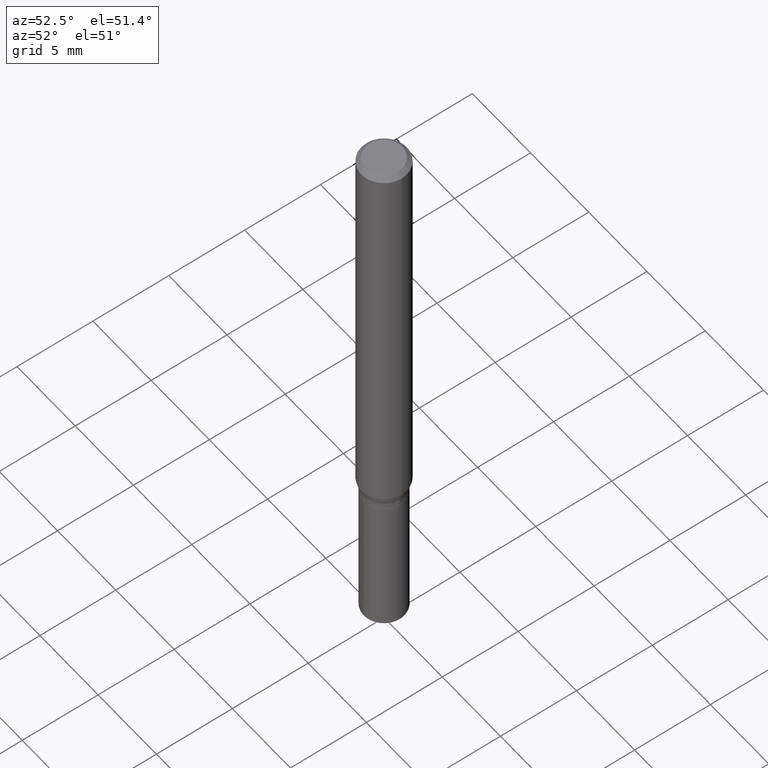
[diagram: clean part render]
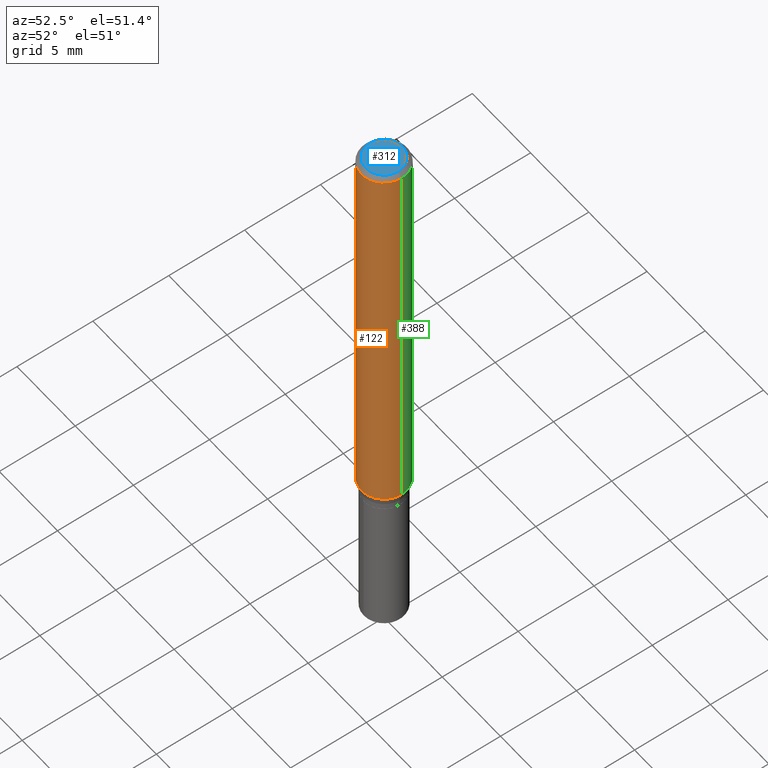
[diagram: same view with three faces highlighted in distinct colors, each labeled with its STEP entity id]
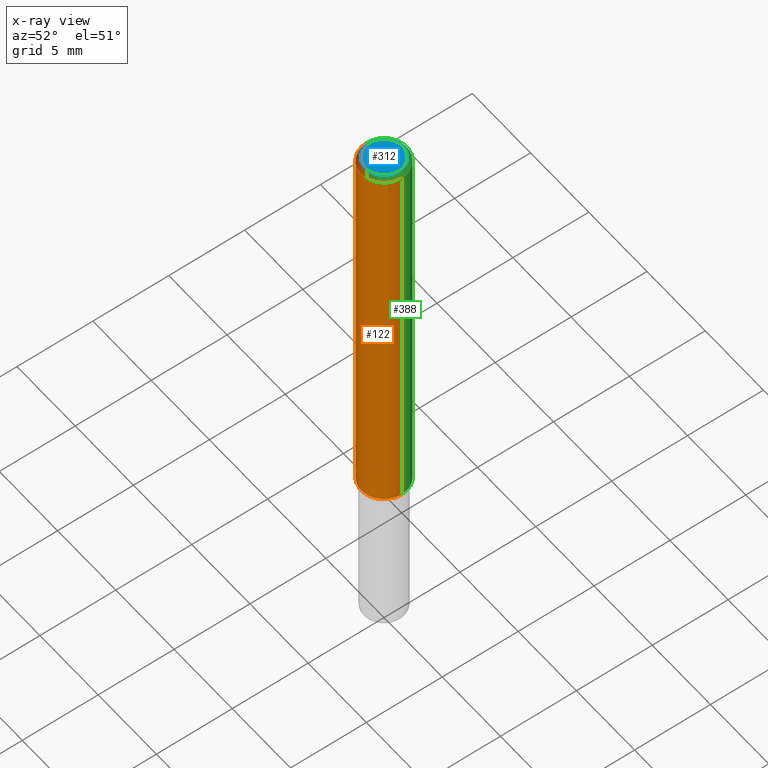
[diagram: x-ray of the same camera — body ghosted, the three highlighted faces saturated]
A machine part, auxiliary view with three faces highlighted in distinct colors.
The next image is the same camera in x-ray (body ghosted, the three faces saturated) — at least one of them is partly hidden behind the body in this view.
Their STEP definitions:

[orange] entity #122 — the highlighted cylindrical surface (edge-blend (fillet) strip) has radius 1.4999 mm, axis along (-0, 0, 1).
#8 = CARTESIAN_POINT ( 'NONE',  ( 2.578604211317355052E-29, -3.681563412833531563E-15, -1.054441669750801669 ) ) ;
#18 = ORIENTED_EDGE ( 'NONE', *, *, #93, .F. ) ;
#33 = CARTESIAN_POINT ( 'NONE',  ( -0.05905000000000006771, 4.195754854663396409E-16, -2.904631170795525045E-30 ) ) ;
#63 = CARTESIAN_POINT ( 'NONE',  ( 0.000000000000000000, 0.000000000000000000, 0.000000000000000000 ) ) ;
#69 = CARTESIAN_POINT ( 'NONE',  ( 2.888098660104664204E-31, -4.123439461173780263E-17, -0.01181000000000007218 ) ) ;
#89 = CARTESIAN_POINT ( 'NONE',  ( 0.05904999999999999832, -4.535783407291118600E-16, -0.01181000000000007218 ) ) ;
#93 = EDGE_CURVE ( 'NONE', #155, #124, #450, .T. ) ;
#95 = CARTESIAN_POINT ( 'NONE',  ( 0.05905000000000013016, -4.093907358950906483E-15, -1.054441669750801669 ) ) ;
#104 = DIRECTION ( 'NONE',  ( 1.000000000000000000, -6.982962677686266711E-15, 0.000000000000000000 ) ) ;
#122 = ADVANCED_FACE ( 'NONE', ( #174 ), #335, .T. ) ;
#124 = VERTEX_POINT ( 'NONE', #444 ) ;
#127 = DIRECTION ( 'NONE',  ( 1.000000000000000000, -6.982962677686266711E-15, 4.876176775795936353E-29 ) ) ;
#129 = VERTEX_POINT ( 'NONE', #95 ) ;
#138 = VERTEX_POINT ( 'NONE', #89 ) ;
#146 = DIRECTION ( 'NONE',  ( -2.445468806185136597E-29, 3.491481338843145583E-15, 1.000000000000000000 ) ) ;
#152 = VECTOR ( 'NONE', #376, 39.37007874015748143 ) ;
#155 = VERTEX_POINT ( 'NONE', #168 ) ;
#168 = CARTESIAN_POINT ( 'NONE',  ( -0.05905000000000013016, -3.261987927367191281E-15, -1.054441669750801669 ) ) ;
#173 = VECTOR ( 'NONE', #285, 39.37007874015748143 ) ;
#174 = FACE_OUTER_BOUND ( 'NONE', #375, .T. ) ;
#214 = DIRECTION ( 'NONE',  ( -2.445468806185136597E-29, 3.491481338843145583E-15, 1.000000000000000000 ) ) ;
#218 = CARTESIAN_POINT ( 'NONE',  ( 0.05905000000000006771, -4.123439461173745257E-16, 2.879382386107503723E-30 ) ) ;
#236 = ORIENTED_EDGE ( 'NONE', *, *, #319, .T. ) ;
#263 = DIRECTION ( 'NONE',  ( -2.445468806185136597E-29, 3.491481338843145583E-15, 1.000000000000000000 ) ) ;
#285 = DIRECTION ( 'NONE',  ( -2.445468806185136877E-29, 3.491481338843145188E-15, 1.000000000000000000 ) ) ;
#286 = EDGE_CURVE ( 'NONE', #124, #138, #381, .T. ) ;
#319 = EDGE_CURVE ( 'NONE', #129, #138, #427, .T. ) ;
#334 = AXIS2_PLACEMENT_3D ( 'NONE', #69, #146, #104 ) ;
#335 = CYLINDRICAL_SURFACE ( 'NONE', #463, 0.05905000000000006771 ) ;
#351 = CIRCLE ( 'NONE', #367, 0.05905000000000013016 ) ;
#367 = AXIS2_PLACEMENT_3D ( 'NONE', #8, #263, #389 ) ;
#368 = ORIENTED_EDGE ( 'NONE', *, *, #286, .F. ) ;
#375 = EDGE_LOOP ( 'NONE', ( #18, #467, #236, #368 ) ) ;
#376 = DIRECTION ( 'NONE',  ( -2.445468806185136877E-29, 3.491481338843145188E-15, 1.000000000000000000 ) ) ;
#381 = CIRCLE ( 'NONE', #334, 0.05904999999999999832 ) ;
#389 = DIRECTION ( 'NONE',  ( 1.000000000000000000, -6.982962677686265133E-15, 0.000000000000000000 ) ) ;
#427 = LINE ( 'NONE', #218, #152 ) ;
#444 = CARTESIAN_POINT ( 'NONE',  ( -0.05904999999999999832, -1.441823418256294167E-15, -0.01181000000000007218 ) ) ;
#450 = LINE ( 'NONE', #33, #173 ) ;
#463 = AXIS2_PLACEMENT_3D ( 'NONE', #63, #214, #127 ) ;
#465 = EDGE_CURVE ( 'NONE', #155, #129, #351, .T. ) ;
#467 = ORIENTED_EDGE ( 'NONE', *, *, #465, .T. ) ;

[blue] entity #312 — the highlighted planar face has unit normal (0, -0, -1).
#6 = CARTESIAN_POINT ( 'NONE',  ( 4.132873053354867254E-48, -5.900647395337818946E-34, -1.690012582823346072E-19 ) ) ;
#23 = CARTESIAN_POINT ( 'NONE',  ( 0.04724000000000000421, -3.852183633974369345E-16, -3.380025165621689721E-19 ) ) ;
#45 = ORIENTED_EDGE ( 'NONE', *, *, #150, .T. ) ;
#74 = CARTESIAN_POINT ( 'NONE',  ( -0.04724000000000000421, 3.504923541997677355E-16, -3.380025165670481712E-19 ) ) ;
#87 = EDGE_LOOP ( 'NONE', ( #45, #156 ) ) ;
#99 = VERTEX_POINT ( 'NONE', #23 ) ;
#100 = FACE_OUTER_BOUND ( 'NONE', #87, .T. ) ;
#110 = CIRCLE ( 'NONE', #459, 0.04724000000000000421 ) ;
#120 = AXIS2_PLACEMENT_3D ( 'NONE', #6, #254, #420 ) ;
#143 = CIRCLE ( 'NONE', #323, 0.04724000000000000421 ) ;
#150 = EDGE_CURVE ( 'NONE', #320, #99, #143, .T. ) ;
#156 = ORIENTED_EDGE ( 'NONE', *, *, #394, .T. ) ;
#181 = CARTESIAN_POINT ( 'NONE',  ( 8.265746106709734507E-48, -1.180129479067563789E-33, -3.380025165646692144E-19 ) ) ;
#205 = DIRECTION ( 'NONE',  ( 1.000000000000000000, -6.982962677686266711E-15, 4.876185090822587894E-29 ) ) ;
#222 = DIRECTION ( 'NONE',  ( 1.000000000000000000, -6.982962677686266711E-15, 4.876185090822587894E-29 ) ) ;
#244 = CARTESIAN_POINT ( 'NONE',  ( 8.265746106709734507E-48, -1.180129479067563789E-33, -3.380025165646692144E-19 ) ) ;
#254 = DIRECTION ( 'NONE',  ( 2.438088387897960049E-29, -3.491481338843145188E-15, -1.000000000000000000 ) ) ;
#297 = PLANE ( 'NONE',  #120 ) ;
#312 = ADVANCED_FACE ( 'NONE', ( #100 ), #297, .F. ) ;
#320 = VERTEX_POINT ( 'NONE', #74 ) ;
#323 = AXIS2_PLACEMENT_3D ( 'NONE', #244, #485, #205 ) ;
#340 = DIRECTION ( 'NONE',  ( -2.445468806185136597E-29, 3.491481338843145583E-15, 1.000000000000000000 ) ) ;
#394 = EDGE_CURVE ( 'NONE', #99, #320, #110, .T. ) ;
#420 = DIRECTION ( 'NONE',  ( -1.000000000000000000, 6.982962677686265922E-15, -4.876176775795935793E-29 ) ) ;
#459 = AXIS2_PLACEMENT_3D ( 'NONE', #181, #340, #222 ) ;
#485 = DIRECTION ( 'NONE',  ( -2.445468806185136597E-29, 3.491481338843145583E-15, 1.000000000000000000 ) ) ;

[green] entity #388 — the highlighted cylindrical surface (edge-blend (fillet) strip) has radius 1.4999 mm, axis along (-0, 0, 1).
#33 = CARTESIAN_POINT ( 'NONE',  ( -0.05905000000000006771, 4.195754854663396409E-16, -2.904631170795525045E-30 ) ) ;
#67 = DIRECTION ( 'NONE',  ( -2.445468806185136597E-29, 3.491481338843145583E-15, 1.000000000000000000 ) ) ;
#89 = CARTESIAN_POINT ( 'NONE',  ( 0.05904999999999999832, -4.535783407291118600E-16, -0.01181000000000007218 ) ) ;
#93 = EDGE_CURVE ( 'NONE', #155, #124, #450, .T. ) ;
#95 = CARTESIAN_POINT ( 'NONE',  ( 0.05905000000000013016, -4.093907358950906483E-15, -1.054441669750801669 ) ) ;
#124 = VERTEX_POINT ( 'NONE', #444 ) ;
#129 = VERTEX_POINT ( 'NONE', #95 ) ;
#138 = VERTEX_POINT ( 'NONE', #89 ) ;
#151 = CYLINDRICAL_SURFACE ( 'NONE', #470, 0.05905000000000006771 ) ;
#152 = VECTOR ( 'NONE', #376, 39.37007874015748143 ) ;
#155 = VERTEX_POINT ( 'NONE', #168 ) ;
#160 = ORIENTED_EDGE ( 'NONE', *, *, #225, .F. ) ;
#166 = CIRCLE ( 'NONE', #490, 0.05905000000000013016 ) ;
#168 = CARTESIAN_POINT ( 'NONE',  ( -0.05905000000000013016, -3.261987927367191281E-15, -1.054441669750801669 ) ) ;
#173 = VECTOR ( 'NONE', #285, 39.37007874015748143 ) ;
#179 = DIRECTION ( 'NONE',  ( 1.000000000000000000, -6.982962677686266711E-15, 0.000000000000000000 ) ) ;
#201 = EDGE_CURVE ( 'NONE', #129, #155, #166, .T. ) ;
#206 = AXIS2_PLACEMENT_3D ( 'NONE', #458, #231, #179 ) ;
#215 = DIRECTION ( 'NONE',  ( 1.000000000000000000, -6.982962677686266711E-15, 4.876176775795936353E-29 ) ) ;
#218 = CARTESIAN_POINT ( 'NONE',  ( 0.05905000000000006771, -4.123439461173745257E-16, 2.879382386107503723E-30 ) ) ;
#219 = CARTESIAN_POINT ( 'NONE',  ( 0.000000000000000000, 0.000000000000000000, 0.000000000000000000 ) ) ;
#225 = EDGE_CURVE ( 'NONE', #138, #124, #292, .T. ) ;
#231 = DIRECTION ( 'NONE',  ( -2.445468806185136597E-29, 3.491481338843145583E-15, 1.000000000000000000 ) ) ;
#258 = DIRECTION ( 'NONE',  ( 1.000000000000000000, -6.982962677686265133E-15, 0.000000000000000000 ) ) ;
#285 = DIRECTION ( 'NONE',  ( -2.445468806185136877E-29, 3.491481338843145188E-15, 1.000000000000000000 ) ) ;
#292 = CIRCLE ( 'NONE', #206, 0.05904999999999999832 ) ;
#301 = DIRECTION ( 'NONE',  ( -2.445468806185136597E-29, 3.491481338843145583E-15, 1.000000000000000000 ) ) ;
#317 = ORIENTED_EDGE ( 'NONE', *, *, #201, .T. ) ;
#319 = EDGE_CURVE ( 'NONE', #129, #138, #427, .T. ) ;
#350 = ORIENTED_EDGE ( 'NONE', *, *, #319, .F. ) ;
#376 = DIRECTION ( 'NONE',  ( -2.445468806185136877E-29, 3.491481338843145188E-15, 1.000000000000000000 ) ) ;
#388 = ADVANCED_FACE ( 'NONE', ( #417 ), #151, .T. ) ;
#393 = EDGE_LOOP ( 'NONE', ( #317, #398, #160, #350 ) ) ;
#398 = ORIENTED_EDGE ( 'NONE', *, *, #93, .T. ) ;
#417 = FACE_OUTER_BOUND ( 'NONE', #393, .T. ) ;
#421 = CARTESIAN_POINT ( 'NONE',  ( 2.578604211317355052E-29, -3.681563412833531563E-15, -1.054441669750801669 ) ) ;
#427 = LINE ( 'NONE', #218, #152 ) ;
#444 = CARTESIAN_POINT ( 'NONE',  ( -0.05904999999999999832, -1.441823418256294167E-15, -0.01181000000000007218 ) ) ;
#450 = LINE ( 'NONE', #33, #173 ) ;
#458 = CARTESIAN_POINT ( 'NONE',  ( 2.888098660104664204E-31, -4.123439461173780263E-17, -0.01181000000000007218 ) ) ;
#470 = AXIS2_PLACEMENT_3D ( 'NONE', #219, #67, #215 ) ;
#490 = AXIS2_PLACEMENT_3D ( 'NONE', #421, #301, #258 ) ;